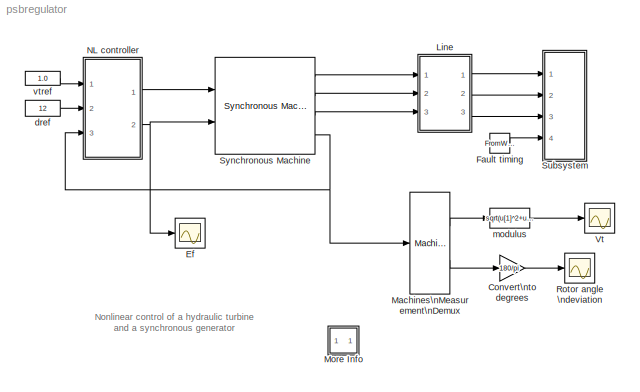
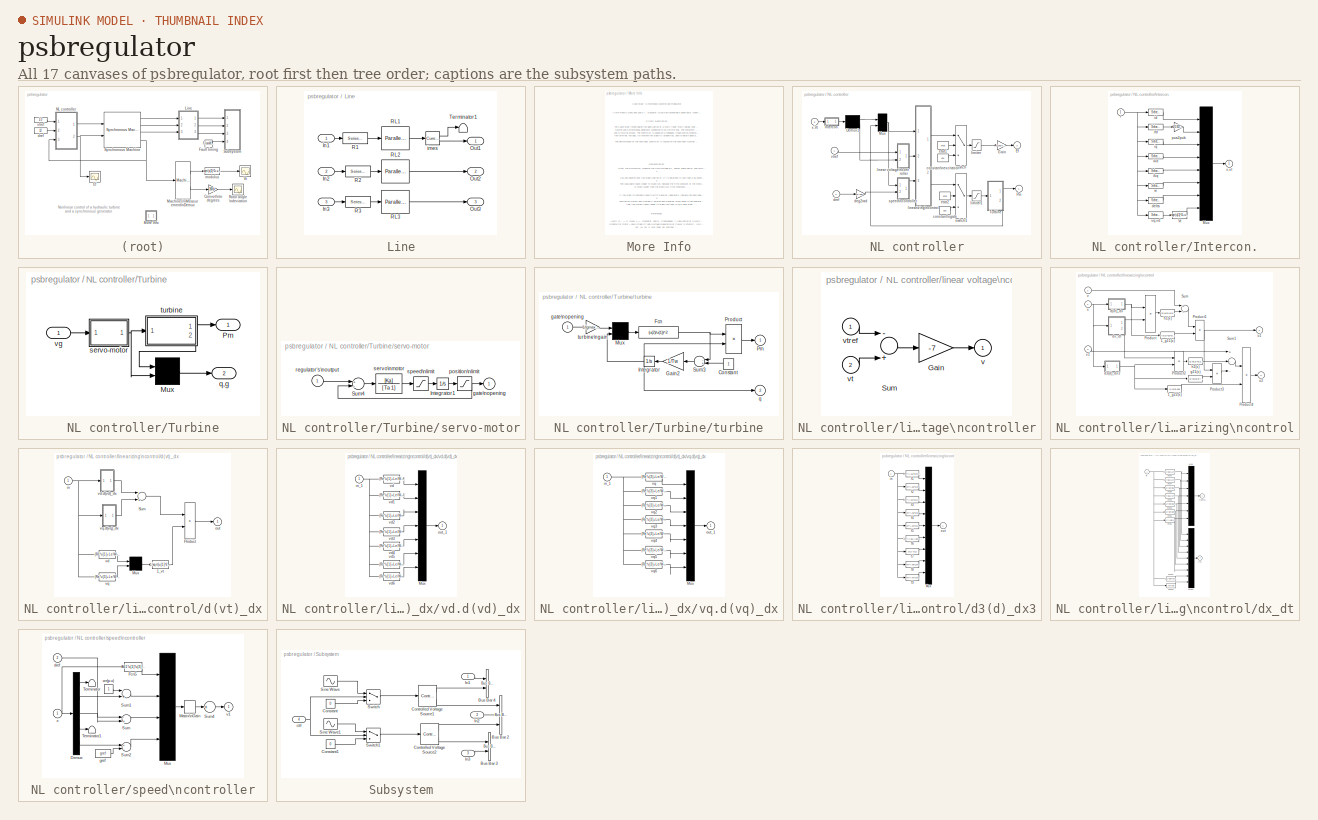
[diagram: thumbnail index - all 17 canvases of the model, root first then tree order]
MODEL psbregulator
KIND model
CONFIG InitFcn = powericon('psbinitsys',bdroot);
CONFIG StopFcn = set_param(gcs,'Dirty','off')
BLOCK [Gain] Convert\nto degrees
  Gain = 180/pi
BLOCK [Scope] Ef
  DataFormat = Array
  LimitDataPoints = off
  NumInputPorts = 1
  Ports = [1]
  TickLabels = on
  YMax = 12.5
  YMin = -12.5
BLOCK [FromWorkspace] Fault  timing
  MaskCallbackString = |
  MaskDescription = steps
  MaskDisplay = plot(te(:,1),te(:,2))
  MaskEnableString = on,on
  MaskIconFrame = on
  MaskIconOpaque = on
  MaskIconRotate = none
  MaskIconUnits = autoscale
  MaskInitialization = te=[t,t(2:length(t))-1e-8,t(length(t))+1e-8;e,e]';[y,i]=sort(te(:,1));te=[te(i,1),te(i,2)];\n\n
  MaskPromptString = transition steps:| states (0/1):
  MaskStyleString = edit,edit
  MaskTabNameString = ,
  MaskToolTipString = on,on
  MaskTunableValueString = on,on
  MaskType = Fault timing
  MaskValueString = [0,0.1,0.2,0.4]|[1,0,1,1]
  MaskVarAliasString = ,
  MaskVariables = t=@1;e=@2;
  MaskVisibilityString = on,on
  SampleTime = 0
  VariableName = te
BLOCK [SubSystem] Line
  MinAlgLoopOccurrences = off
  Ports = [3, 3]
  RTWSystemCode = Auto
  TreatAsAtomicUnit = off
BLOCK [Inport] Line/In1
  IconDisplay = Port number
  LatchInput = off
  Port = 1
BLOCK [Inport] Line/In2
  IconDisplay = Port number
  LatchInput = off
  Port = 2
BLOCK [Inport] Line/In3
  IconDisplay = Port number
  LatchInput = off
  Port = 3
BLOCK [Outport] Line/Out1
  BusOutputAsStruct = off
  IconDisplay = Port number
  InitialOutput = 0
BLOCK [Outport] Line/Out2
  BusOutputAsStruct = off
  IconDisplay = Port number
  InitialOutput = 0
  Port = 2
BLOCK [Outport] Line/Out3
  BusOutputAsStruct = off
  IconDisplay = Port number
  InitialOutput = 0
  Port = 3
BLOCK [Reference] Line/R1  REF=powerlib2/Elements/Series RLC Branch
  PSBOutputType = 1
  Ports = [1, 1]
  SourceBlock = powerlib2/Elements/Series RLC Branch
  SourceType = Series RLC Branch
  Tag = PoWeRsYsTeMbLoCk
  a = 5.6566e-2
  b = 0
  c = inf
  mesure = None
BLOCK [Reference] Line/R2  REF=powerlib2/Elements/Series RLC Branch
  PSBOutputType = 1
  Ports = [1, 1]
  SourceBlock = powerlib2/Elements/Series RLC Branch
  SourceType = Series RLC Branch
  Tag = PoWeRsYsTeMbLoCk
  a = 5.6566e-2
  b = 0
  c = inf
  mesure = None
BLOCK [Reference] Line/R3  REF=powerlib2/Elements/Series RLC Branch
  PSBOutputType = 1
  Ports = [1, 1]
  SourceBlock = powerlib2/Elements/Series RLC Branch
  SourceType = Series RLC Branch
  Tag = PoWeRsYsTeMbLoCk
  a = 5.6566e-2
  b = 0
  c = inf
  mesure = None
BLOCK [Reference] Line/RL1  REF=powerlib2/Elements/Parallel RLC Branch
  PSBOutputType = 1
  Ports = [1, 1]
  SourceBlock = powerlib2/Elements/Parallel RLC Branch
  SourceType = Parallel RLC Branch
  Tag = PoWeRsYsTeMbLoCk
  a = 25
  b = 6.5668e-4
  c = 0
  mesure = None
BLOCK [Reference] Line/RL2  REF=powerlib2/Elements/Parallel RLC Branch
  PSBOutputType = 1
  Ports = [1, 1]
  SourceBlock = powerlib2/Elements/Parallel RLC Branch
  SourceType = Parallel RLC Branch
  Tag = PoWeRsYsTeMbLoCk
  a = 25
  b = 6.5668e-4
  c = 0
  mesure = None
BLOCK [Reference] Line/RL3  REF=powerlib2/Elements/Parallel RLC Branch
  PSBOutputType = 1
  Ports = [1, 1]
  SourceBlock = powerlib2/Elements/Parallel RLC Branch
  SourceType = Parallel RLC Branch
  Tag = PoWeRsYsTeMbLoCk
  a = 25
  b = 6.5668e-4
  c = 0
  mesure = None
BLOCK [Terminator] Line/Terminator1
BLOCK [Reference] Line/imes  REF=powerlib2/Measurements/Current Measurement
  OutputType = Magnitude
  PSBOutputType = 01
  PSBequivalent = 1
  PhasorSimulation = off
  Ports = [1, 2]
  SourceBlock = powerlib2/Measurements/Current Measurement
  SourceType = Current Measurement
  Tag = PoWeRsYsTeMmEaSuReMeNt
BLOCK [Reference] Machines\nMeasurement\nDemux  REF=powerlib2/Machines/Machines\nMeasurement\nDemux
  Ports = [1, 2]
  SourceBlock = powerlib2/Machines/Machines\nMeasurement\nDemux
  SourceType = Machine measurements
  asm1 = on
  asm10 = on
  asm11 = on
  asm2 = on
  asm3 = on
  asm4 = on
  asm5 = on
  asm6 = on
  asm7 = on
  asm8 = on
  asm9 = on
  lastType = 1
  machType = Synchronous
  pmsm1 = on
  pmsm2 = on
  pmsm3 = on
  pmsm4 = on
  pmsm5 = on
  pmsm6 = on
  sm1 = off
  sm10 = off
  sm11 = off
  sm115 = off
  sm12 = off
  sm13 = off
  sm14 = off
  sm2 = off
  sm3 = off
  sm4 = off
  sm5 = off
  sm6 = on
  sm7 = on
  sm8 = off
  sm9 = off
  ssm1 = on
  ssm2 = on
  ssm3 = on
  ssm4 = on
  ssm5 = on
  ssm6 = on
BLOCK [SubSystem] More Info
  MaskDisplay = disp('?')
  MaskIconFrame = on
  MaskIconOpaque = on
  MaskIconRotate = none
  MaskIconUnits = autoscale
  MinAlgLoopOccurrences = off
  Ports = []
  RTWSystemCode = Auto
  TreatAsAtomicUnit = off
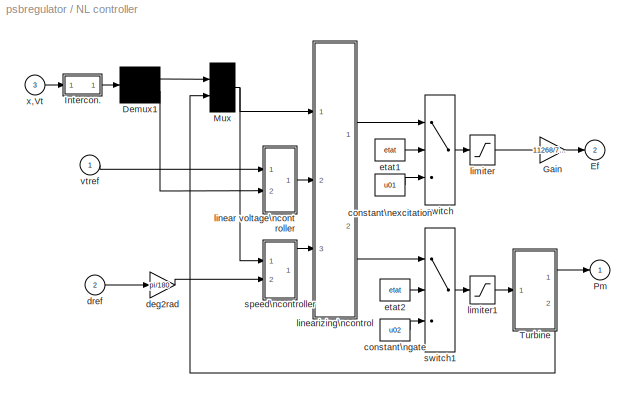
BLOCK [SubSystem] NL controller
  MaskCallbackString = ||||||
  MaskEnableString = on,on,on,on,on,on,on
  MaskIconFrame = on
  MaskIconOpaque = on
  MaskIconRotate = none
  MaskIconUnits = autoscale
  MaskInitialization = a=pi/2;[A11,A12,A13,A14,A15,A16,A21,A22,A23,A24,A25,A26,A31,A32,A33,A34,A35,A36,A41,A42,A43,A44,A45,A46,A51,A52,A53,A54,A55,A56,A61,A62,A63,A64,A65,A66,A67,A81,A82,A92,g1,g2,g4,g9,u01,u02,Re,Le,Wr,gref,po]=psbregulset(K,mac,delta);Ka=sm(1);Ta=sm(2);gmin=gate(1);gmax=gate(2);vgmin=gate(3);vgmax=gate(4);go=po*(gmax-gmin);\n\n
  MaskPromptString = Bus voltage (p.u.):|Controller state (0=off,1=on):|Associated machine name:|Desired load angle (deg):|Servo-motor [ Ka()  Ta(sec) ]:|Gate opening limits [ gmin,gmax(pu)    vgmin,vgmax(pu/s) ]:|Water time constant Tw(sec):
  MaskStyleString = edit,edit,edit,edit,edit,edit,edit
  MaskTabNameString = ,,,,,,
  MaskToolTipString = on,on,on,on,on,on,on
  MaskTunableValueString = on,on,on,on,on,on,on
  MaskType = Non-linear speed and excitation controller
  MaskValueString = 1|1|psbregulator/Synchronous Machine|12|[ 10/3  0.07 ]|[  0.01  0.97518  -0.1  0.1 ]|2.67
  MaskVarAliasString = ,,,,,,
  MaskVariables = K=@1;etat=@2;mac=&3;delta=@4;sm=@5;gate=@6;Tw=@7;
  MaskVisibilityString = on,on,on,on,on,on,on
  MinAlgLoopOccurrences = off
  Ports = [3, 2]
  RTWSystemCode = Auto
  TreatAsAtomicUnit = off
BLOCK [Demux] NL controller/Demux1
  Outputs = [7,1]
  Ports = [1, 2]
BLOCK [Outport] NL controller/Ef
  BusOutputAsStruct = off
  IconDisplay = Port number
  InitialOutput = 0
  Port = 2
BLOCK [Gain] NL controller/Gain
  Gain = 11268/7.8041
BLOCK [SubSystem] NL controller/Intercon.
  MinAlgLoopOccurrences = off
  Ports = [1, 1]
  RTWSystemCode = Auto
  TreatAsAtomicUnit = off
BLOCK [Outport] NL controller/Intercon./ x,vt 
  BusOutputAsStruct = off
  IconDisplay = Port number
  InitialOutput = 0
BLOCK [Inport] NL controller/Intercon./*
  IconDisplay = Port number
  LatchInput = off
  Port = 1
BLOCK [Mux] NL controller/Intercon./Mux
  Inputs = 8
  Ports = [8, 1]
BLOCK [Fcn] NL controller/Intercon./Vt
  Expr = sqrt(u[1]^2+u[2]^2)
BLOCK [Selector] NL controller/Intercon./delta
  Elements = 14
  InputPortWidth = 22
  Ports = [1, 1]
BLOCK [Selector] NL controller/Intercon./id
  Elements = 5
  InputPortWidth = 22
  Ports = [1, 1]
BLOCK [Selector] NL controller/Intercon./ifd
  Elements = 6
  InputPortWidth = 22
  Ports = [1, 1]
BLOCK [Selector] NL controller/Intercon./ikd
  Elements = 9
  InputPortWidth = 22
  Ports = [1, 1]
BLOCK [Selector] NL controller/Intercon./ikq
  Elements = 7
  InputPortWidth = 22
  Ports = [1, 1]
BLOCK [Selector] NL controller/Intercon./iq
  Elements = 4
  InputPortWidth = 22
  Ports = [1, 1]
BLOCK [Gain] NL controller/Intercon./pua2pub
  Gain = 1/0.91763
BLOCK [Selector] NL controller/Intercon./vq,vd
  Elements = [ 12:13 ]
  InputPortWidth = 22
  Ports = [1, 1]
BLOCK [Selector] NL controller/Intercon./w
  Elements = 15
  InputPortWidth = 22
  Ports = [1, 1]
BLOCK [Mux] NL controller/Mux
  Inputs = [7,2]
  Ports = [2, 1]
BLOCK [Outport] NL controller/Pm
  BusOutputAsStruct = off
  IconDisplay = Port number
  InitialOutput = 0
BLOCK [SubSystem] NL controller/Turbine
  MinAlgLoopOccurrences = off
  Ports = [1, 2]
  RTWSystemCode = Auto
  TreatAsAtomicUnit = off
BLOCK [Mux] NL controller/Turbine/Mux
  Inputs = 2
  Ports = [2, 1]
BLOCK [Outport] NL controller/Turbine/Pm
  BusOutputAsStruct = off
  IconDisplay = Port number
  InitialOutput = 0
BLOCK [Outport] NL controller/Turbine/q,g
  BusOutputAsStruct = off
  IconDisplay = Port number
  InitialOutput = 0
  Port = 2
BLOCK [SubSystem] NL controller/Turbine/servo-motor
  MaskDisplay = disp('servo-\\nmotor')
  MaskIconFrame = on
  MaskIconOpaque = on
  MaskIconRotate = none
  MaskIconUnits = autoscale
  MinAlgLoopOccurrences = off
  Ports = [1, 1]
  RTWSystemCode = Auto
  ShowPortLabels = off
  TreatAsAtomicUnit = off
BLOCK [Integrator] NL controller/Turbine/servo-motor/Integrator1
  InitialCondition = go
  Ports = [1, 1]
  ZeroCross = off
BLOCK [Sum] NL controller/Turbine/servo-motor/Sum4
  Inputs = +-
  Ports = [2, 1]
BLOCK [Outport] NL controller/Turbine/servo-motor/gate\nopening
  BusOutputAsStruct = off
  IconDisplay = Port number
  InitialOutput = 0
BLOCK [Saturate] NL controller/Turbine/servo-motor/position\nlimit
  LowerLimit = gmin
  UpperLimit = gmax
  ZeroCross = off
BLOCK [Inport] NL controller/Turbine/servo-motor/regulator's\noutput
  IconDisplay = Port number
  LatchInput = off
  Port = 1
BLOCK [TransferFcn] NL controller/Turbine/servo-motor/servo\nmotor
  Denominator = [ Ta  1]
  Numerator = [Ka]
BLOCK [Saturate] NL controller/Turbine/servo-motor/speed\nlimit
  LowerLimit = vgmin
  UpperLimit = vgmax
  ZeroCross = off
BLOCK [SubSystem] NL controller/Turbine/turbine
  MaskDisplay = disp('hydraulic\\nturbine')
  MaskIconFrame = on
  MaskIconOpaque = on
  MaskIconRotate = none
  MaskIconUnits = autoscale
  MinAlgLoopOccurrences = off
  Ports = [1, 2]
  RTWSystemCode = Auto
  ShowPortLabels = off
  TreatAsAtomicUnit = off
BLOCK [Constant] NL controller/Turbine/turbine/Constant
BLOCK [Fcn] NL controller/Turbine/turbine/Fcn
  Expr = (u(2)/u(1))^2
BLOCK [Gain] NL controller/Turbine/turbine/Gain2
  Gain = 1/Tw
BLOCK [Integrator] NL controller/Turbine/turbine/Integrator
  InitialCondition = po
  Ports = [1, 1]
  ZeroCross = off
BLOCK [Mux] NL controller/Turbine/turbine/Mux
  Inputs = 2
  Ports = [2, 1]
BLOCK [Outport] NL controller/Turbine/turbine/Pm
  BusOutputAsStruct = off
  IconDisplay = Port number
  InitialOutput = 0
BLOCK [Product] NL controller/Turbine/turbine/Product
  Ports = [2, 1]
  RndMeth = Floor
BLOCK [Sum] NL controller/Turbine/turbine/Sum3
  Inputs = -+
  Ports = [2, 1]
BLOCK [Inport] NL controller/Turbine/turbine/gate\nopening
  IconDisplay = Port number
  LatchInput = off
  Port = 1
BLOCK [Outport] NL controller/Turbine/turbine/q
  BusOutputAsStruct = off
  IconDisplay = Port number
  InitialOutput = 0
  Port = 2
BLOCK [Gain] NL controller/Turbine/turbine/turbine\ngain
  Gain = 1/(gmax-gmin)
BLOCK [Inport] NL controller/Turbine/vg
  IconDisplay = Port number
  LatchInput = off
  Port = 1
BLOCK [Constant] NL controller/constant\nexcitation
  Value = u01
BLOCK [Constant] NL controller/constant\ngate
  Value = u02
BLOCK [Gain] NL controller/deg2rad
  Gain = pi/180
BLOCK [Inport] NL controller/dref
  IconDisplay = Port number
  LatchInput = off
  Port = 2
BLOCK [Constant] NL controller/etat1
  Value = etat
BLOCK [Constant] NL controller/etat2
  Value = etat
BLOCK [Saturate] NL controller/limiter
  LowerLimit = -11.5*7.804/11268
  UpperLimit = 11.5*7.804/11268
  ZeroCross = off
BLOCK [Saturate] NL controller/limiter1
  LowerLimit = -1
  UpperLimit = 1
  ZeroCross = off
BLOCK [SubSystem] NL controller/linear voltage\ncontroller
  MinAlgLoopOccurrences = off
  Ports = [2, 1]
  RTWSystemCode = Auto
  TreatAsAtomicUnit = off
BLOCK [Gain] NL controller/linear voltage\ncontroller/Gain
  Gain = -7
BLOCK [Sum] NL controller/linear voltage\ncontroller/Sum
  Inputs = -+
  Ports = [2, 1]
BLOCK [Outport] NL controller/linear voltage\ncontroller/v
  BusOutputAsStruct = off
  IconDisplay = Port number
  InitialOutput = 0
BLOCK [Inport] NL controller/linear voltage\ncontroller/vt
  IconDisplay = Port number
  LatchInput = off
  Port = 2
BLOCK [Inport] NL controller/linear voltage\ncontroller/vtref
  IconDisplay = Port number
  LatchInput = off
  Port = 1
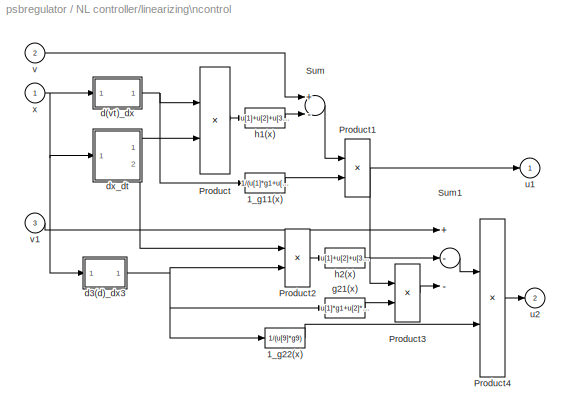
BLOCK [SubSystem] NL controller/linearizing\ncontrol
  MinAlgLoopOccurrences = off
  Ports = [3, 2]
  RTWSystemCode = Auto
  TreatAsAtomicUnit = off
BLOCK [Fcn] NL controller/linearizing\ncontrol/1_g11(x)
  Expr = 1/(u[1]*g1+u[2]*g2+u[4]*g4)
BLOCK [Fcn] NL controller/linearizing\ncontrol/1_g22(x)
  Expr = 1/(u[9]*g9)
BLOCK [Product] NL controller/linearizing\ncontrol/Product
  Ports = [2, 1]
  RndMeth = Floor
BLOCK [Product] NL controller/linearizing\ncontrol/Product1
  Ports = [2, 1]
  RndMeth = Floor
BLOCK [Product] NL controller/linearizing\ncontrol/Product2
  Ports = [2, 1]
  RndMeth = Floor
BLOCK [Product] NL controller/linearizing\ncontrol/Product3
  Ports = [2, 1]
  RndMeth = Floor
BLOCK [Product] NL controller/linearizing\ncontrol/Product4
  Ports = [2, 1]
  RndMeth = Floor
BLOCK [Sum] NL controller/linearizing\ncontrol/Sum
  Inputs = +-
  Ports = [2, 1]
BLOCK [Sum] NL controller/linearizing\ncontrol/Sum1
  Inputs = +--
  Ports = [3, 1]
BLOCK [SubSystem] NL controller/linearizing\ncontrol/d(vt)_dx
  MinAlgLoopOccurrences = off
  Ports = [1, 1]
  RTWSystemCode = Auto
  TreatAsAtomicUnit = off
BLOCK [Fcn] NL controller/linearizing\ncontrol/d(vt)_dx/1_vt
  Expr = 1/sqrt(u[1]^2+u[2]^2)
BLOCK [Mux] NL controller/linearizing\ncontrol/d(vt)_dx/Mux
  Inputs = 2
  Ports = [2, 1]
BLOCK [Product] NL controller/linearizing\ncontrol/d(vt)_dx/Product
  Ports = [2, 1]
  RndMeth = Floor
BLOCK [Sum] NL controller/linearizing\ncontrol/d(vt)_dx/Sum
  Ports = [2, 1]
BLOCK [Inport] NL controller/linearizing\ncontrol/d(vt)_dx/in
  IconDisplay = Port number
  LatchInput = off
  Port = 1
BLOCK [Outport] NL controller/linearizing\ncontrol/d(vt)_dx/out
  BusOutputAsStruct = off
  IconDisplay = Port number
  InitialOutput = 0
BLOCK [Fcn] NL controller/linearizing\ncontrol/d(vt)_dx/vd
  Expr = (Re*u[1]+Le/Wr*(A11*u[1]+A12*u[2]+A13*u[3]*u[6]+A14*u[4]+A15*u[5]*u[6]+A16*cos(-u[7]+a))-Le*u[3]*u[6]+K*cos(-u[7]+a))
BLOCK [SubSystem] NL controller/linearizing\ncontrol/d(vt)_dx/vd.d(vd)_dx
  MinAlgLoopOccurrences = off
  Ports = [1, 1]
  RTWSystemCode = Auto
  TreatAsAtomicUnit = off
BLOCK [Mux] NL controller/linearizing\ncontrol/d(vt)_dx/vd.d(vd)_dx/Mux
  Inputs = 7
  Ports = [7, 1]
BLOCK [Inport] NL controller/linearizing\ncontrol/d(vt)_dx/vd.d(vd)_dx/in_1
  IconDisplay = Port number
  LatchInput = off
  Port = 1
BLOCK [Outport] NL controller/linearizing\ncontrol/d(vt)_dx/vd.d(vd)_dx/out_1
  BusOutputAsStruct = off
  IconDisplay = Port number
  InitialOutput = 0
BLOCK [Fcn] NL controller/linearizing\ncontrol/d(vt)_dx/vd.d(vd)_dx/vd
  Expr = (Re*u[1]+Le/Wr*(A11*u[1]+A12*u[2]+A13*u[3]*u[6]+A14*u[4]+A15*u[5]*u[6]+A16*cos(-u[7]+a))-Le*u[3]*u[6]+K*cos(-u[7]+a))*(Re+Le*A11/Wr)
BLOCK [Fcn] NL controller/linearizing\ncontrol/d(vt)_dx/vd.d(vd)_dx/vd1
  Expr = (Re*u[1]+Le/Wr*(A11*u[1]+A12*u[2]+A13*u[3]*u[6]+A14*u[4]+A15*u[5]*u[6]+A16*cos(-u[7]+a))-Le*u[3]*u[6]+K*cos(-u[7]+a))*(Le*A12/Wr)
BLOCK [Fcn] NL controller/linearizing\ncontrol/d(vt)_dx/vd.d(vd)_dx/vd2
  Expr = (Re*u[1]+Le/Wr*(A11*u[1]+A12*u[2]+A13*u[3]*u[6]+A14*u[4]+A15*u[5]*u[6]+A16*cos(-u[7]+a))-Le*u[3]*u[6]+K*cos(-u[7]+a))*(Le*A13/Wr-Le)*u[6]
BLOCK [Fcn] NL controller/linearizing\ncontrol/d(vt)_dx/vd.d(vd)_dx/vd3
  Expr = (Re*u[1]+Le/Wr*(A11*u[1]+A12*u[2]+A13*u[3]*u[6]+A14*u[4]+A15*u[5]*u[6]+A16*cos(-u[7]+a))-Le*u[3]*u[6]+K*cos(-u[7]+a))*(Le*A14/Wr)
BLOCK [Fcn] NL controller/linearizing\ncontrol/d(vt)_dx/vd.d(vd)_dx/vd4
  Expr = (Re*u[1]+Le/Wr*(A11*u[1]+A12*u[2]+A13*u[3]*u[6]+A14*u[4]+A15*u[5]*u[6]+A16*cos(-u[7]+a))-Le*u[3]*u[6]+K*cos(-u[7]+a))*(Le*A15/Wr)*u[6]
BLOCK [Fcn] NL controller/linearizing\ncontrol/d(vt)_dx/vd.d(vd)_dx/vd5
  Expr = (Re*u[1]+Le/Wr*(A11*u[1]+A12*u[2]+A13*u[3]*u[6]+A14*u[4]+A15*u[5]*u[6]+A16*cos(-u[7]+a))-Le*u[3]*u[6]+K*cos(-u[7]+a))*((Le*A13/Wr-Le)*u[3]+Le*A15/Wr*u[5])
BLOCK [Fcn] NL controller/linearizing\ncontrol/d(vt)_dx/vd.d(vd)_dx/vd6
  Expr = (Re*u[1]+Le/Wr*(A11*u[1]+A12*u[2]+A13*u[3]*u[6]+A14*u[4]+A15*u[5]*u[6]+A16*cos(-u[7]+a))-Le*u[3]*u[6]+K*cos(-u[7]+a))*(K+Le*A16/Wr)*sin(-u[7]+a)
BLOCK [Fcn] NL controller/linearizing\ncontrol/d(vt)_dx/vq
  Expr = (Re*u[3]+Le/Wr*(A31*u[1]*u[6]+A32*u[2]*u[6]+A33*u[3]+A34*u[4]*u[6]+A35*u[5]+A36*sin(-u[7]+a))+Le*u[1]*u[6]+K*sin(-u[7]+a))
BLOCK [SubSystem] NL controller/linearizing\ncontrol/d(vt)_dx/vq.d(vq)_dx
  MinAlgLoopOccurrences = off
  Ports = [1, 1]
  RTWSystemCode = Auto
  TreatAsAtomicUnit = off
BLOCK [Mux] NL controller/linearizing\ncontrol/d(vt)_dx/vq.d(vq)_dx/Mux
  Inputs = 7
  Ports = [7, 1]
BLOCK [Inport] NL controller/linearizing\ncontrol/d(vt)_dx/vq.d(vq)_dx/in_1
  IconDisplay = Port number
  LatchInput = off
  Port = 1
BLOCK [Outport] NL controller/linearizing\ncontrol/d(vt)_dx/vq.d(vq)_dx/out_1
  BusOutputAsStruct = off
  IconDisplay = Port number
  InitialOutput = 0
BLOCK [Fcn] NL controller/linearizing\ncontrol/d(vt)_dx/vq.d(vq)_dx/vq
  Expr = (Re*u[3]+Le/Wr*(A31*u[1]*u[6]+A32*u[2]*u[6]+A33*u[3]+A34*u[4]*u[6]+A35*u[5]+A36*sin(-u[7]+a))+Le*u[1]*u[6]+K*sin(-u[7]+a))*(Le*A31/Wr+Le)*u[6]
BLOCK [Fcn] NL controller/linearizing\ncontrol/d(vt)_dx/vq.d(vq)_dx/vq1
  Expr = (Re*u[3]+Le/Wr*(A31*u[1]*u[6]+A32*u[2]*u[6]+A33*u[3]+A34*u[4]*u[6]+A35*u[5]+A36*sin(-u[7]+a))+Le*u[1]*u[6]+K*sin(-u[7]+a))*Le*A32/Wr*u[6]
BLOCK [Fcn] NL controller/linearizing\ncontrol/d(vt)_dx/vq.d(vq)_dx/vq2
  Expr = (Re*u[3]+Le/Wr*(A31*u[1]*u[6]+A32*u[2]*u[6]+A33*u[3]+A34*u[4]*u[6]+A35*u[5]+A36*sin(-u[7]+a))+Le*u[1]*u[6]+K*sin(-u[7]+a))*(Re+Le*A33/Wr)
BLOCK [Fcn] NL controller/linearizing\ncontrol/d(vt)_dx/vq.d(vq)_dx/vq3
  Expr = (Re*u[3]+Le/Wr*(A31*u[1]*u[6]+A32*u[2]*u[6]+A33*u[3]+A34*u[4]*u[6]+A35*u[5]+A16*sin(-u[7]+a))+Le*u[1]*u[6]+K*sin(-u[7]+a))*(Le*A34/Wr)*u[6]
BLOCK [Fcn] NL controller/linearizing\ncontrol/d(vt)_dx/vq.d(vq)_dx/vq4
  Expr = (Re*u[3]+Le/Wr*(A31*u[1]*u[6]+A32*u[2]*u[6]+A33*u[3]+A34*u[4]*u[6]+A35*u[5]+A36*sin(-u[7]+a))+Le*u[1]*u[6]+K*sin(-u[7]+a))*(Le*A35/Wr)
BLOCK [Fcn] NL controller/linearizing\ncontrol/d(vt)_dx/vq.d(vq)_dx/vq5
  Expr = (Re*u[3]+Le/Wr*(A31*u[1]*u[6]+A32*u[2]*u[6]+A33*u[3]+A34*u[4]*u[6]+A35*u[5]+A36*sin(-u[7]+a))+Le*u[1]*u[6]+K*sin(-u[7]+a))*((Le+Le*A31/Wr)*u[1]+Le*A32/Wr*u[2]+Le*A34/Wr*u[4])
BLOCK [Fcn] NL controller/linearizing\ncontrol/d(vt)_dx/vq.d(vq)_dx/vq6
  Expr = (Re*u[3]+Le/Wr*(A31*u[1]*u[6]+A32*u[2]*u[6]+A33*u[3]+A34*u[4]*u[6]+A35*u[5]+A36*sin(-u[7]+a))+Le*u[1]*u[6]+K*sin(-u[7]+a))*(-cos(-u[7]+a)*(Le*A36/Wr+K))
BLOCK [SubSystem] NL controller/linearizing\ncontrol/d3(d)_dx3
  MinAlgLoopOccurrences = off
  Ports = [1, 1]
  RTWSystemCode = Auto
  TreatAsAtomicUnit = off
BLOCK [Mux] NL controller/linearizing\ncontrol/d3(d)_dx3/Mux
  Inputs = 9
  Ports = [9, 1]
BLOCK [Fcn] NL controller/linearizing\ncontrol/d3(d)_dx3/f1
  Expr = Wr*(A61*u[3]+A64*u[5])
BLOCK [Fcn] NL controller/linearizing\ncontrol/d3(d)_dx3/f2
  Expr = Wr*A62*u[3]
BLOCK [Fcn] NL controller/linearizing\ncontrol/d3(d)_dx3/f3
  Expr = Wr*(A61*u[1]+A62*u[2]+A63*u[4])
BLOCK [Fcn] NL controller/linearizing\ncontrol/d3(d)_dx3/f4
  Expr = Wr*A63*u[3]
BLOCK [Fcn] NL controller/linearizing\ncontrol/d3(d)_dx3/f5
  Expr = Wr*A64*u[1]
BLOCK [Fcn] NL controller/linearizing\ncontrol/d3(d)_dx3/f6
  Expr = Wr*(A65-A66*u[8]/u[6]^2-A67*u[9]/u[6]^2)
BLOCK [Fcn] NL controller/linearizing\ncontrol/d3(d)_dx3/f7
  Expr = u[1]-u[1]
BLOCK [Fcn] NL controller/linearizing\ncontrol/d3(d)_dx3/f8
  Expr = Wr*A66/u[6]
BLOCK [Fcn] NL controller/linearizing\ncontrol/d3(d)_dx3/f9
  Expr = Wr*A67/u[6]
BLOCK [Inport] NL controller/linearizing\ncontrol/d3(d)_dx3/in
  IconDisplay = Port number
  LatchInput = off
  Port = 1
BLOCK [Outport] NL controller/linearizing\ncontrol/d3(d)_dx3/out
  BusOutputAsStruct = off
  IconDisplay = Port number
  InitialOutput = 0
BLOCK [SubSystem] NL controller/linearizing\ncontrol/dx_dt
  MinAlgLoopOccurrences = off
  Ports = [1, 2]
  RTWSystemCode = Auto
  TreatAsAtomicUnit = off
BLOCK [Fcn] NL controller/linearizing\ncontrol/dx_dt/Fcn10
  Expr = A51*u[1]*u[6]+A52*u[2]*u[6]+A53*u[3]+A54*u[4]*u[6]+A55*u[5]+A56*sin(-u[7]+a)
BLOCK [Fcn] NL controller/linearizing\ncontrol/dx_dt/Fcn11
  Expr = A81*u[8]+A82*u[9]
BLOCK [Fcn] NL controller/linearizing\ncontrol/dx_dt/Fcn12
  Expr = A92*u[9]
BLOCK [Fcn] NL controller/linearizing\ncontrol/dx_dt/Fcn4
  Expr = A11*u[1]+A12*u[2]+A13*u[3]*u[6]+A14*u[4]+A15*u[5]*u[6]+A16*cos(-u[7]+a)
BLOCK [Fcn] NL controller/linearizing\ncontrol/dx_dt/Fcn5
  Expr = A61*u[1]*u[3]+A62*u[2]*u[3]+A63*u[3]*u[4]+A64*u[1]*u[5]+A65*u[6]+A66*u[8]/u[6]+A67*u[9]/u[6]
BLOCK [Fcn] NL controller/linearizing\ncontrol/dx_dt/Fcn6
  Expr = Wr*(u[6]-1)
BLOCK [Fcn] NL controller/linearizing\ncontrol/dx_dt/Fcn7
  Expr = A21*u[1]+A22*u[2]+A23*u[3]*u[6]+A24*u[4]+A25*u[5]*u[6]+A26*cos(-u[7]+a)
BLOCK [Fcn] NL controller/linearizing\ncontrol/dx_dt/Fcn8
  Expr = A31*u[1]*u[6]+A32*u[2]*u[6]+A33*u[3]+A34*u[4]*u[6]+A35*u[5]+A36*sin(-u[7]+a)
BLOCK [Fcn] NL controller/linearizing\ncontrol/dx_dt/Fcn9
  Expr = A41*u[1]+A42*u[2]+A43*u[3]*u[6]+A44*u[4]+A45*u[5]*u[6]+A46*cos(-u[7]+a)
BLOCK [Mux] NL controller/linearizing\ncontrol/dx_dt/Mux
  Inputs = 7
  Ports = [7, 1]
BLOCK [Mux] NL controller/linearizing\ncontrol/dx_dt/Mux1
  Inputs = 9
  Ports = [9, 1]
BLOCK [Outport] NL controller/linearizing\ncontrol/dx_dt/f(x)
  BusOutputAsStruct = off
  IconDisplay = Port number
  InitialOutput = 0
  Port = 2
BLOCK [Outport] NL controller/linearizing\ncontrol/dx_dt/f(xms)
  BusOutputAsStruct = off
  IconDisplay = Port number
  InitialOutput = 0
BLOCK [Inport] NL controller/linearizing\ncontrol/dx_dt/in
  IconDisplay = Port number
  LatchInput = off
  Port = 1
BLOCK [Fcn] NL controller/linearizing\ncontrol/g21(x)
  Expr = u[1]*g1+u[2]*g2+u[4]*g4
BLOCK [Fcn] NL controller/linearizing\ncontrol/h1(x)
  Expr = u[1]+u[2]+u[3]+u[4]+u[5]+u[6]+u[7]
BLOCK [Fcn] NL controller/linearizing\ncontrol/h2(x)
  Expr = u[1]+u[2]+u[3]+u[4]+u[5]+u[6]+u[7]+u[8]+u[9]
BLOCK [Outport] NL controller/linearizing\ncontrol/u1
  BusOutputAsStruct = off
  IconDisplay = Port number
  InitialOutput = 0
BLOCK [Outport] NL controller/linearizing\ncontrol/u2
  BusOutputAsStruct = off
  IconDisplay = Port number
  InitialOutput = 0
  Port = 2
BLOCK [Inport] NL controller/linearizing\ncontrol/v
  IconDisplay = Port number
  LatchInput = off
  Port = 2
BLOCK [Inport] NL controller/linearizing\ncontrol/v1
  IconDisplay = Port number
  LatchInput = off
  Port = 3
BLOCK [Inport] NL controller/linearizing\ncontrol/x
  IconDisplay = Port number
  LatchInput = off
  Port = 1
BLOCK [SubSystem] NL controller/speed\ncontroller
  MinAlgLoopOccurrences = off
  Ports = [2, 1]
  RTWSystemCode = Auto
  TreatAsAtomicUnit = off
BLOCK [Demux] NL controller/speed\ncontroller/Demux
  Outputs = [ 5,1,1,1,1]
  Ports = [1, 5]
BLOCK [Fcn] NL controller/speed\ncontroller/Fcn5
  Expr = A61*u[1]*u[3]+A62*u[2]*u[3]+A63*u[3]*u[4]+A64*u[1]*u[5]+A65*u[6]+A66*u[8]/u[6]+A67*u[9]/u[6]
BLOCK [StateSpace] NL controller/speed\ncontroller/Matrix\nGain
  A = []
  B = []
  C = []
  D = K
  MaskDescription = Matrix Gain.
  MaskDisplay = disp('K')
  MaskEnableString = on
  MaskHelp = Multiplies input vector by entered matrix to produce output vector (y=Au).
  MaskIconFrame = on
  MaskIconOpaque = on
  MaskIconRotate = none
  MaskIconUnits = autoscale
  MaskInitialization = K=@1;
  MaskPromptString = Gain matrix:
  MaskStyleString = edit
  MaskToolTipString = on
  MaskTunableValueString = on
  MaskType = Matrix Gain
  MaskValueString = [ -Wr*11.00, -Wr*46.6345, -36.6345, 553.6311*80 ]
  MaskVisibilityString = on
BLOCK [Mux] NL controller/speed\ncontroller/Mux
  Ports = [4, 1]
BLOCK [Sum] NL controller/speed\ncontroller/Sum
  Inputs = -+
  Ports = [2, 1]
BLOCK [Sum] NL controller/speed\ncontroller/Sum1
  Inputs = -+
  Ports = [2, 1]
BLOCK [Sum] NL controller/speed\ncontroller/Sum2
  Inputs = +-
  Ports = [2, 1]
BLOCK [Sum] NL controller/speed\ncontroller/Sum4
  Inputs = +
  Ports = [1, 1]
BLOCK [Terminator] NL controller/speed\ncontroller/Terminator
BLOCK [Terminator] NL controller/speed\ncontroller/Terminator1
BLOCK [Inport] NL controller/speed\ncontroller/dref
  IconDisplay = Port number
  LatchInput = off
  Port = 2
BLOCK [Constant] NL controller/speed\ncontroller/gref
  Value = gref
BLOCK [Outport] NL controller/speed\ncontroller/v1
  BusOutputAsStruct = off
  IconDisplay = Port number
  InitialOutput = 0
BLOCK [Constant] NL controller/speed\ncontroller/wr(p.u)
BLOCK [Inport] NL controller/speed\ncontroller/x
  IconDisplay = Port number
  LatchInput = off
  Port = 1
BLOCK [Switch] NL controller/switch
  SaturateOnIntegerOverflow = off
  Threshold = 0.5
  ZeroCross = off
BLOCK [Switch] NL controller/switch1
  SaturateOnIntegerOverflow = off
  Threshold = 0.5
  ZeroCross = off
BLOCK [Inport] NL controller/vtref
  IconDisplay = Port number
  LatchInput = off
  Port = 1
BLOCK [Inport] NL controller/x,Vt
  IconDisplay = Port number
  LatchInput = off
  Port = 3
BLOCK [Scope] Rotor angle \ndeviation
  DataFormat = Array
  Decimation = 10
  LimitDataPoints = off
  NumInputPorts = 1
  Ports = [1]
  SaveName = ScopeData1
  TickLabels = on
  TimeRange = 2
  YMax = 13.5
  YMin = 10.5
BLOCK [SubSystem] Subsystem
  MinAlgLoopOccurrences = off
  Ports = [4]
  RTWSystemCode = Auto
  TreatAsAtomicUnit = off
BLOCK [Reference] Subsystem/Bus Bar 2  REF=powerlib2/Connectors/Bus Bar (vert)
  PSBOutputType = 11111111111111111111111111111111111111111111111111111111111111111111111111111111111111111
  Ports = [3]
  SourceBlock = powerlib2/Connectors/Bus Bar (vert)
  SourceType = Bus Bar
  entrees = 3
  sorties = 0
BLOCK [Reference] Subsystem/Bus Bar 3  REF=powerlib2/Connectors/Bus Bar (vert)
  PSBOutputType = 11111111111111111111111111111111111111111111111111111111111111111111111111111111111111111
  Ports = [2]
  SourceBlock = powerlib2/Connectors/Bus Bar (vert)
  SourceType = Bus Bar
  entrees = 2
  sorties = 0
BLOCK [Reference] Subsystem/Bus Bar 4  REF=powerlib2/Connectors/Bus Bar (vert)
  PSBOutputType = 11111111111111111111111111111111111111111111111111111111111111111111111111111111111111111
  Ports = [2]
  SourceBlock = powerlib2/Connectors/Bus Bar (vert)
  SourceType = Bus Bar
  entrees = 2
  sorties = 0
BLOCK [Constant] Subsystem/Constant
  Value = 0
BLOCK [Constant] Subsystem/Constant1
  Value = 0
BLOCK [Reference] Subsystem/Controlled Voltage Source1  REF=powerlib2/Electrical\nSources/Controlled Voltage Source
  PSBOutputType = 11
  Ports = [1, 2]
  SourceBlock = powerlib2/Electrical\nSources/Controlled Voltage Source
  SourceType = Controlled Voltage Source
  Tag = PoWeRsYsTeMbLoCk
  ifreq = 0
  initsrc = on
  iph = 0
  iv = 13800*sqrt(2)*sin(60*2*pi+120*pi/180)
  mesure = None
  srctyp = AC
BLOCK [Reference] Subsystem/Controlled Voltage Source2  REF=powerlib2/Electrical\nSources/Controlled Voltage Source
  PSBOutputType = 11
  Ports = [1, 2]
  SourceBlock = powerlib2/Electrical\nSources/Controlled Voltage Source
  SourceType = Controlled Voltage Source
  Tag = PoWeRsYsTeMbLoCk
  ifreq = 0
  initsrc = on
  iph = 0
  iv = 13800*sqrt(2)*sin(60*2*pi+0)
  mesure = None
  srctyp = AC
BLOCK [Inport] Subsystem/In1
  IconDisplay = Port number
  LatchInput = off
  Port = 1
BLOCK [Inport] Subsystem/In2
  IconDisplay = Port number
  LatchInput = off
  Port = 2
BLOCK [Inport] Subsystem/In3
  IconDisplay = Port number
  LatchInput = off
  Port = 3
BLOCK [Sin] Subsystem/Sine Wave
  Amplitude = 13800*sqrt(2)
  Frequency = 60*2*pi
  Phase = 120*pi/180
  Ports = [0, 1]
  SampleTime = 0
  SineType = Time based
BLOCK [Sin] Subsystem/Sine Wave1
  Amplitude = 13800*sqrt(2)
  Frequency = 60*2*pi
  Ports = [0, 1]
  SampleTime = 0
  SineType = Time based
BLOCK [Switch] Subsystem/Switch
  SaturateOnIntegerOverflow = off
  Threshold = 0.5
  ZeroCross = off
BLOCK [Switch] Subsystem/Switch1
  SaturateOnIntegerOverflow = off
  Threshold = 0.5
  ZeroCross = off
BLOCK [Inport] Subsystem/ctrl
  IconDisplay = Port number
  LatchInput = off
  Port = 4
BLOCK [Reference] Synchronous Machine  REF=powerlib2/Machines/Synchronous Machine\npu Fundamental
  LoadFlowParameters = [1,0,0,0,0]
  PSBOutputType = 1110
  Ports = [2, 4]
  SourceBlock = powerlib2/Machines/Synchronous Machine\npu Fundamental
  SourceType = Synchronous Machine
  Tag = PoWeRsYsTeMbLoCk
  iounits = 0
  rotorType = Salient-pole
  x1 = [ 202E6  13800   60 ]
  x2 = [ 0.003   0.19837   0.91763   0.21763 ]
  x3 = [ 6.3581E-04   0.16537 ]
  x4 = [ 4.6454E-03  3.9203E-02  6.8430E-03  1.4544E-02 ]
  x4b = []
  x5 = [ 3.195  0  32 ]
  x6 = [0 12 0.30512 0.30512 0.30512 105.77 -14.23 -134.23 0.970463]
  x7 = off
  x8 = [ ]
BLOCK [Scope] Vt
  DataFormat = Array
  LimitDataPoints = off
  NumInputPorts = 1
  Ports = [1]
  SaveName = ScopeData2
  TickLabels = on
  TimeRange = 2
  YMax = 1.6
  YMin = 5.55112e-017
BLOCK [Constant] dref
  Value = 12
BLOCK [Fcn] modulus
  Expr = sqrt(u[1]^2+u[2]^2)
BLOCK [Constant] vtref
  Value = 1.0
ANNOTATION (root): Nonlinear control of a hydraulic turbine\nand a synchronous generator
ANNOTATION More Info: 1
ANNOTATION More Info: 2
ANNOTATION More Info: 3
ANNOTATION More Info: Aime Francis Okou and Louis-A. Dessaint (Ecole de technologie superieure, Montreal)
ANNOTATION More Info: Akhrif O., A.F. Okou, L.A. Dessaint, and R. Champagne, \"Application of a Multivariable Feedback Linearization \nScheme for Rotor Angle Stability and Voltage Regulation of Power Systems\", IEEE Transactions on Power Systems,\nvol. 14, no. 2, May 1999, pp. 620-628.
ANNOTATION More Info: Case study: Synchronous Machine and Regulator
ANNOTATION More Info: Circuit Description
ANNOTATION More Info: Demonstration
ANNOTATION More Info: If you want to compare results with classical regulators, replace the nonlinear controller with the same\nexcitation system and Hydraulic Turbine and Governor block used in the psbturbine demo. You will notice \nthat the system takes longer to stabilize than in this case study.
ANNOTATION More Info: References
ANNOTATION More Info: Start the simulation. Observe the field voltage Ef, power angle delta, and terminal voltage Vt.
ANNOTATION More Info: This case study investigates the application of a multi-input multi-output nonlinear controller to a system consisting of a hydraulic \nturbine and a synchronous generator connected to an infinite bus. The complete system is modeled using SimPowerSystems\nand Simulink blocks. The controller is based on a feedback linearization scheme. Its main goal is to control the rotor angle as well as \nthe te...<+451ch>
ANNOTATION More Info: You can observe how the stabilization of Vt is obtained in less than 0.25 seconds with this controller. \nThe load angle takes longer to stabilize, because the time constant of the mechanical part of the system\nis much larger than the electrical time constants.
LINE Convert\nto degrees:1 -> Rotor angle \ndeviation:1
LINE Fault  timing:1 -> Subsystem:4
LINE Line/In1:1 -> Line/R1:1
LINE Line/In2:1 -> Line/R2:1
LINE Line/In3:1 -> Line/R3:1
LINE Line/R1:1 -> Line/RL1:1
LINE Line/R2:1 -> Line/RL2:1
LINE Line/R3:1 -> Line/RL3:1
LINE Line/RL1:1 -> Line/imes:1
LINE Line/RL2:1 -> Line/Out2:1
LINE Line/RL3:1 -> Line/Out3:1
LINE Line/imes:1 -> Line/Terminator1:1
LINE Line/imes:2 -> Line/Out1:1
LINE Line:1 -> Subsystem:1
LINE Line:2 -> Subsystem:2
LINE Line:3 -> Subsystem:3
LINE Machines\nMeasurement\nDemux:1 -> modulus:1
LINE Machines\nMeasurement\nDemux:2 -> Convert\nto degrees:1
LINE NL controller/Demux1:1 -> NL controller/Mux:1
LINE NL controller/Demux1:2 -> NL controller/linear voltage\ncontroller:2
LINE NL controller/Gain:1 -> NL controller/Ef:1
NET NL controller/Intercon./*:1 -> NL controller/Intercon./delta:1, NL controller/Intercon./id:1, NL controller/Intercon./ifd:1, NL controller/Intercon./ikd:1, NL controller/Intercon./ikq:1, NL controller/Intercon./iq:1, NL controller/Intercon./vq,vd:1, NL controller/Intercon./w:1
LINE NL controller/Intercon./Mux:1 -> NL controller/Intercon./ x,vt :1
LINE NL controller/Intercon./Vt:1 -> NL controller/Intercon./Mux:8
LINE NL controller/Intercon./delta:1 -> NL controller/Intercon./Mux:7
LINE NL controller/Intercon./id:1 -> NL controller/Intercon./Mux:1
LINE NL controller/Intercon./ifd:1 -> NL controller/Intercon./pua2pub:1
LINE NL controller/Intercon./ikd:1 -> NL controller/Intercon./Mux:4
LINE NL controller/Intercon./ikq:1 -> NL controller/Intercon./Mux:5
LINE NL controller/Intercon./iq:1 -> NL controller/Intercon./Mux:3
LINE NL controller/Intercon./pua2pub:1 -> NL controller/Intercon./Mux:2
LINE NL controller/Intercon./vq,vd:1 -> NL controller/Intercon./Vt:1
LINE NL controller/Intercon./w:1 -> NL controller/Intercon./Mux:6
LINE NL controller/Intercon.:1 -> NL controller/Demux1:1
NET NL controller/Mux:1 -> NL controller/linearizing\ncontrol:1, NL controller/speed\ncontroller:1
LINE NL controller/Turbine/Mux:1 -> NL controller/Turbine/q,g:1
LINE NL controller/Turbine/servo-motor/Integrator1:1 -> NL controller/Turbine/servo-motor/position\nlimit:1
LINE NL controller/Turbine/servo-motor/Sum4:1 -> NL controller/Turbine/servo-motor/servo\nmotor:1
NET NL controller/Turbine/servo-motor/position\nlimit:1 -> NL controller/Turbine/servo-motor/Sum4:2, NL controller/Turbine/servo-motor/gate\nopening:1
LINE NL controller/Turbine/servo-motor/regulator's\noutput:1 -> NL controller/Turbine/servo-motor/Sum4:1
LINE NL controller/Turbine/servo-motor/servo\nmotor:1 -> NL controller/Turbine/servo-motor/speed\nlimit:1
LINE NL controller/Turbine/servo-motor/speed\nlimit:1 -> NL controller/Turbine/servo-motor/Integrator1:1
NET NL controller/Turbine/servo-motor:1 -> NL controller/Turbine/Mux:2, NL controller/Turbine/turbine:1
LINE NL controller/Turbine/turbine/Constant:1 -> NL controller/Turbine/turbine/Sum3:2
NET NL controller/Turbine/turbine/Fcn:1 -> NL controller/Turbine/turbine/Product:1, NL controller/Turbine/turbine/Sum3:1
LINE NL controller/Turbine/turbine/Gain2:1 -> NL controller/Turbine/turbine/Integrator:1
NET NL controller/Turbine/turbine/Integrator:1 -> NL controller/Turbine/turbine/Mux:2, NL controller/Turbine/turbine/Product:2, NL controller/Turbine/turbine/q:1
LINE NL controller/Turbine/turbine/Mux:1 -> NL controller/Turbine/turbine/Fcn:1
LINE NL controller/Turbine/turbine/Product:1 -> NL controller/Turbine/turbine/Pm:1
LINE NL controller/Turbine/turbine/Sum3:1 -> NL controller/Turbine/turbine/Gain2:1
LINE NL controller/Turbine/turbine/gate\nopening:1 -> NL controller/Turbine/turbine/turbine\ngain:1
LINE NL controller/Turbine/turbine/turbine\ngain:1 -> NL controller/Turbine/turbine/Mux:1
LINE NL controller/Turbine/turbine:1 -> NL controller/Turbine/Pm:1
LINE NL controller/Turbine/turbine:2 -> NL controller/Turbine/Mux:1
LINE NL controller/Turbine/vg:1 -> NL controller/Turbine/servo-motor:1
LINE NL controller/Turbine:1 -> NL controller/Pm:1
LINE NL controller/Turbine:2 -> NL controller/Mux:2
LINE NL controller/constant\nexcitation:1 -> NL controller/switch:3
LINE NL controller/constant\ngate:1 -> NL controller/switch1:3
LINE NL controller/deg2rad:1 -> NL controller/speed\ncontroller:2
LINE NL controller/dref:1 -> NL controller/deg2rad:1
LINE NL controller/etat1:1 -> NL controller/switch:2
LINE NL controller/etat2:1 -> NL controller/switch1:2
LINE NL controller/limiter1:1 -> NL controller/Turbine:1
LINE NL controller/limiter:1 -> NL controller/Gain:1
LINE NL controller/linear voltage\ncontroller/Gain:1 -> NL controller/linear voltage\ncontroller/v:1
LINE NL controller/linear voltage\ncontroller/Sum:1 -> NL controller/linear voltage\ncontroller/Gain:1
LINE NL controller/linear voltage\ncontroller/vt:1 -> NL controller/linear voltage\ncontroller/Sum:2
LINE NL controller/linear voltage\ncontroller/vtref:1 -> NL controller/linear voltage\ncontroller/Sum:1
LINE NL controller/linear voltage\ncontroller:1 -> NL controller/linearizing\ncontrol:2
LINE NL controller/linearizing\ncontrol/1_g11(x):1 -> NL controller/linearizing\ncontrol/Product1:2
LINE NL controller/linearizing\ncontrol/1_g22(x):1 -> NL controller/linearizing\ncontrol/Product4:2
NET NL controller/linearizing\ncontrol/Product1:1 -> NL controller/linearizing\ncontrol/Product3:1, NL controller/linearizing\ncontrol/u1:1
LINE NL controller/linearizing\ncontrol/Product2:1 -> NL controller/linearizing\ncontrol/h2(x):1
LINE NL controller/linearizing\ncontrol/Product3:1 -> NL controller/linearizing\ncontrol/Sum1:3
LINE NL controller/linearizing\ncontrol/Product4:1 -> NL controller/linearizing\ncontrol/u2:1
LINE NL controller/linearizing\ncontrol/Product:1 -> NL controller/linearizing\ncontrol/h1(x):1
LINE NL controller/linearizing\ncontrol/Sum1:1 -> NL controller/linearizing\ncontrol/Product4:1
LINE NL controller/linearizing\ncontrol/Sum:1 -> NL controller/linearizing\ncontrol/Product1:1
LINE NL controller/linearizing\ncontrol/d(vt)_dx/1_vt:1 -> NL controller/linearizing\ncontrol/d(vt)_dx/Product:2
LINE NL controller/linearizing\ncontrol/d(vt)_dx/Mux:1 -> NL controller/linearizing\ncontrol/d(vt)_dx/1_vt:1
LINE NL controller/linearizing\ncontrol/d(vt)_dx/Product:1 -> NL controller/linearizing\ncontrol/d(vt)_dx/out:1
LINE NL controller/linearizing\ncontrol/d(vt)_dx/Sum:1 -> NL controller/linearizing\ncontrol/d(vt)_dx/Product:1
NET NL controller/linearizing\ncontrol/d(vt)_dx/in:1 -> NL controller/linearizing\ncontrol/d(vt)_dx/vd.d(vd)_dx:1, NL controller/linearizing\ncontrol/d(vt)_dx/vd:1, NL controller/linearizing\ncontrol/d(vt)_dx/vq.d(vq)_dx:1, NL controller/linearizing\ncontrol/d(vt)_dx/vq:1
LINE NL controller/linearizing\ncontrol/d(vt)_dx/vd.d(vd)_dx/Mux:1 -> NL controller/linearizing\ncontrol/d(vt)_dx/vd.d(vd)_dx/out_1:1
NET NL controller/linearizing\ncontrol/d(vt)_dx/vd.d(vd)_dx/in_1:1 -> NL controller/linearizing\ncontrol/d(vt)_dx/vd.d(vd)_dx/vd1:1, NL controller/linearizing\ncontrol/d(vt)_dx/vd.d(vd)_dx/vd2:1, NL controller/linearizing\ncontrol/d(vt)_dx/vd.d(vd)_dx/vd3:1, NL controller/linearizing\ncontrol/d(vt)_dx/vd.d(vd)_dx/vd4:1, NL controller/linearizing\ncontrol/d(vt)_dx/vd.d(vd)_dx/vd5:1, NL controller/linearizing\ncontrol/d(vt)_dx/vd.d(vd)_dx/vd6:1, NL controller/linearizing\ncontrol/d(vt)_dx/vd.d(vd)_dx/vd:1
LINE NL controller/linearizing\ncontrol/d(vt)_dx/vd.d(vd)_dx/vd1:1 -> NL controller/linearizing\ncontrol/d(vt)_dx/vd.d(vd)_dx/Mux:2
LINE NL controller/linearizing\ncontrol/d(vt)_dx/vd.d(vd)_dx/vd2:1 -> NL controller/linearizing\ncontrol/d(vt)_dx/vd.d(vd)_dx/Mux:3
LINE NL controller/linearizing\ncontrol/d(vt)_dx/vd.d(vd)_dx/vd3:1 -> NL controller/linearizing\ncontrol/d(vt)_dx/vd.d(vd)_dx/Mux:4
LINE NL controller/linearizing\ncontrol/d(vt)_dx/vd.d(vd)_dx/vd4:1 -> NL controller/linearizing\ncontrol/d(vt)_dx/vd.d(vd)_dx/Mux:5
LINE NL controller/linearizing\ncontrol/d(vt)_dx/vd.d(vd)_dx/vd5:1 -> NL controller/linearizing\ncontrol/d(vt)_dx/vd.d(vd)_dx/Mux:6
LINE NL controller/linearizing\ncontrol/d(vt)_dx/vd.d(vd)_dx/vd6:1 -> NL controller/linearizing\ncontrol/d(vt)_dx/vd.d(vd)_dx/Mux:7
LINE NL controller/linearizing\ncontrol/d(vt)_dx/vd.d(vd)_dx/vd:1 -> NL controller/linearizing\ncontrol/d(vt)_dx/vd.d(vd)_dx/Mux:1
LINE NL controller/linearizing\ncontrol/d(vt)_dx/vd.d(vd)_dx:1 -> NL controller/linearizing\ncontrol/d(vt)_dx/Sum:1
LINE NL controller/linearizing\ncontrol/d(vt)_dx/vd:1 -> NL controller/linearizing\ncontrol/d(vt)_dx/Mux:1
LINE NL controller/linearizing\ncontrol/d(vt)_dx/vq.d(vq)_dx/Mux:1 -> NL controller/linearizing\ncontrol/d(vt)_dx/vq.d(vq)_dx/out_1:1
NET NL controller/linearizing\ncontrol/d(vt)_dx/vq.d(vq)_dx/in_1:1 -> NL controller/linearizing\ncontrol/d(vt)_dx/vq.d(vq)_dx/vq1:1, NL controller/linearizing\ncontrol/d(vt)_dx/vq.d(vq)_dx/vq2:1, NL controller/linearizing\ncontrol/d(vt)_dx/vq.d(vq)_dx/vq3:1, NL controller/linearizing\ncontrol/d(vt)_dx/vq.d(vq)_dx/vq4:1, NL controller/linearizing\ncontrol/d(vt)_dx/vq.d(vq)_dx/vq5:1, NL controller/linearizing\ncontrol/d(vt)_dx/vq.d(vq)_dx/vq6:1, NL controller/linearizing\ncontrol/d(vt)_dx/vq.d(vq)_dx/vq:1
LINE NL controller/linearizing\ncontrol/d(vt)_dx/vq.d(vq)_dx/vq1:1 -> NL controller/linearizing\ncontrol/d(vt)_dx/vq.d(vq)_dx/Mux:2
LINE NL controller/linearizing\ncontrol/d(vt)_dx/vq.d(vq)_dx/vq2:1 -> NL controller/linearizing\ncontrol/d(vt)_dx/vq.d(vq)_dx/Mux:3
LINE NL controller/linearizing\ncontrol/d(vt)_dx/vq.d(vq)_dx/vq3:1 -> NL controller/linearizing\ncontrol/d(vt)_dx/vq.d(vq)_dx/Mux:4
LINE NL controller/linearizing\ncontrol/d(vt)_dx/vq.d(vq)_dx/vq4:1 -> NL controller/linearizing\ncontrol/d(vt)_dx/vq.d(vq)_dx/Mux:5
LINE NL controller/linearizing\ncontrol/d(vt)_dx/vq.d(vq)_dx/vq5:1 -> NL controller/linearizing\ncontrol/d(vt)_dx/vq.d(vq)_dx/Mux:6
LINE NL controller/linearizing\ncontrol/d(vt)_dx/vq.d(vq)_dx/vq6:1 -> NL controller/linearizing\ncontrol/d(vt)_dx/vq.d(vq)_dx/Mux:7
LINE NL controller/linearizing\ncontrol/d(vt)_dx/vq.d(vq)_dx/vq:1 -> NL controller/linearizing\ncontrol/d(vt)_dx/vq.d(vq)_dx/Mux:1
LINE NL controller/linearizing\ncontrol/d(vt)_dx/vq.d(vq)_dx:1 -> NL controller/linearizing\ncontrol/d(vt)_dx/Sum:2
LINE NL controller/linearizing\ncontrol/d(vt)_dx/vq:1 -> NL controller/linearizing\ncontrol/d(vt)_dx/Mux:2
NET NL controller/linearizing\ncontrol/d(vt)_dx:1 -> NL controller/linearizing\ncontrol/1_g11(x):1, NL controller/linearizing\ncontrol/Product:1
LINE NL controller/linearizing\ncontrol/d3(d)_dx3/Mux:1 -> NL controller/linearizing\ncontrol/d3(d)_dx3/out:1
LINE NL controller/linearizing\ncontrol/d3(d)_dx3/f1:1 -> NL controller/linearizing\ncontrol/d3(d)_dx3/Mux:1
LINE NL controller/linearizing\ncontrol/d3(d)_dx3/f2:1 -> NL controller/linearizing\ncontrol/d3(d)_dx3/Mux:2
LINE NL controller/linearizing\ncontrol/d3(d)_dx3/f3:1 -> NL controller/linearizing\ncontrol/d3(d)_dx3/Mux:3
LINE NL controller/linearizing\ncontrol/d3(d)_dx3/f4:1 -> NL controller/linearizing\ncontrol/d3(d)_dx3/Mux:4
LINE NL controller/linearizing\ncontrol/d3(d)_dx3/f5:1 -> NL controller/linearizing\ncontrol/d3(d)_dx3/Mux:5
LINE NL controller/linearizing\ncontrol/d3(d)_dx3/f6:1 -> NL controller/linearizing\ncontrol/d3(d)_dx3/Mux:6
LINE NL controller/linearizing\ncontrol/d3(d)_dx3/f7:1 -> NL controller/linearizing\ncontrol/d3(d)_dx3/Mux:7
LINE NL controller/linearizing\ncontrol/d3(d)_dx3/f8:1 -> NL controller/linearizing\ncontrol/d3(d)_dx3/Mux:8
LINE NL controller/linearizing\ncontrol/d3(d)_dx3/f9:1 -> NL controller/linearizing\ncontrol/d3(d)_dx3/Mux:9
NET NL controller/linearizing\ncontrol/d3(d)_dx3/in:1 -> NL controller/linearizing\ncontrol/d3(d)_dx3/f1:1, NL controller/linearizing\ncontrol/d3(d)_dx3/f2:1, NL controller/linearizing\ncontrol/d3(d)_dx3/f3:1, NL controller/linearizing\ncontrol/d3(d)_dx3/f4:1, NL controller/linearizing\ncontrol/d3(d)_dx3/f5:1, NL controller/linearizing\ncontrol/d3(d)_dx3/f6:1, NL controller/linearizing\ncontrol/d3(d)_dx3/f7:1, NL controller/linearizing\ncontrol/d3(d)_dx3/f8:1, NL controller/linearizing\ncontrol/d3(d)_dx3/f9:1
NET NL controller/linearizing\ncontrol/d3(d)_dx3:1 -> NL controller/linearizing\ncontrol/1_g22(x):1, NL controller/linearizing\ncontrol/Product2:2, NL controller/linearizing\ncontrol/g21(x):1
NET NL controller/linearizing\ncontrol/dx_dt/Fcn10:1 -> NL controller/linearizing\ncontrol/dx_dt/Mux1:5, NL controller/linearizing\ncontrol/dx_dt/Mux:5
LINE NL controller/linearizing\ncontrol/dx_dt/Fcn11:1 -> NL controller/linearizing\ncontrol/dx_dt/Mux1:8
LINE NL controller/linearizing\ncontrol/dx_dt/Fcn12:1 -> NL controller/linearizing\ncontrol/dx_dt/Mux1:9
NET NL controller/linearizing\ncontrol/dx_dt/Fcn4:1 -> NL controller/linearizing\ncontrol/dx_dt/Mux1:1, NL controller/linearizing\ncontrol/dx_dt/Mux:1
NET NL controller/linearizing\ncontrol/dx_dt/Fcn5:1 -> NL controller/linearizing\ncontrol/dx_dt/Mux1:6, NL controller/linearizing\ncontrol/dx_dt/Mux:6
NET NL controller/linearizing\ncontrol/dx_dt/Fcn6:1 -> NL controller/linearizing\ncontrol/dx_dt/Mux1:7, NL controller/linearizing\ncontrol/dx_dt/Mux:7
NET NL controller/linearizing\ncontrol/dx_dt/Fcn7:1 -> NL controller/linearizing\ncontrol/dx_dt/Mux1:2, NL controller/linearizing\ncontrol/dx_dt/Mux:2
NET NL controller/linearizing\ncontrol/dx_dt/Fcn8:1 -> NL controller/linearizing\ncontrol/dx_dt/Mux1:3, NL controller/linearizing\ncontrol/dx_dt/Mux:3
NET NL controller/linearizing\ncontrol/dx_dt/Fcn9:1 -> NL controller/linearizing\ncontrol/dx_dt/Mux1:4, NL controller/linearizing\ncontrol/dx_dt/Mux:4
LINE NL controller/linearizing\ncontrol/dx_dt/Mux1:1 -> NL controller/linearizing\ncontrol/dx_dt/f(x):1
LINE NL controller/linearizing\ncontrol/dx_dt/Mux:1 -> NL controller/linearizing\ncontrol/dx_dt/f(xms):1
NET NL controller/linearizing\ncontrol/dx_dt/in:1 -> NL controller/linearizing\ncontrol/dx_dt/Fcn10:1, NL controller/linearizing\ncontrol/dx_dt/Fcn11:1, NL controller/linearizing\ncontrol/dx_dt/Fcn12:1, NL controller/linearizing\ncontrol/dx_dt/Fcn4:1, NL controller/linearizing\ncontrol/dx_dt/Fcn5:1, NL controller/linearizing\ncontrol/dx_dt/Fcn6:1, NL controller/linearizing\ncontrol/dx_dt/Fcn7:1, NL controller/linearizing\ncontrol/dx_dt/Fcn8:1, NL controller/linearizing\ncontrol/dx_dt/Fcn9:1
LINE NL controller/linearizing\ncontrol/dx_dt:1 -> NL controller/linearizing\ncontrol/Product:2
LINE NL controller/linearizing\ncontrol/dx_dt:2 -> NL controller/linearizing\ncontrol/Product2:1
LINE NL controller/linearizing\ncontrol/g21(x):1 -> NL controller/linearizing\ncontrol/Product3:2
LINE NL controller/linearizing\ncontrol/h1(x):1 -> NL controller/linearizing\ncontrol/Sum:2
LINE NL controller/linearizing\ncontrol/h2(x):1 -> NL controller/linearizing\ncontrol/Sum1:2
LINE NL controller/linearizing\ncontrol/v1:1 -> NL controller/linearizing\ncontrol/Sum1:1
LINE NL controller/linearizing\ncontrol/v:1 -> NL controller/linearizing\ncontrol/Sum:1
NET NL controller/linearizing\ncontrol/x:1 -> NL controller/linearizing\ncontrol/d(vt)_dx:1, NL controller/linearizing\ncontrol/d3(d)_dx3:1, NL controller/linearizing\ncontrol/dx_dt:1
LINE NL controller/linearizing\ncontrol:1 -> NL controller/switch:1
LINE NL controller/linearizing\ncontrol:2 -> NL controller/switch1:1
LINE NL controller/speed\ncontroller/Demux:1 -> NL controller/speed\ncontroller/Terminator:1
LINE NL controller/speed\ncontroller/Demux:2 -> NL controller/speed\ncontroller/Sum1:2
LINE NL controller/speed\ncontroller/Demux:3 -> NL controller/speed\ncontroller/Sum:2
LINE NL controller/speed\ncontroller/Demux:4 -> NL controller/speed\ncontroller/Terminator1:1
LINE NL controller/speed\ncontroller/Demux:5 -> NL controller/speed\ncontroller/Sum2:1
LINE NL controller/speed\ncontroller/Fcn5:1 -> NL controller/speed\ncontroller/Mux:1
LINE NL controller/speed\ncontroller/Matrix\nGain:1 -> NL controller/speed\ncontroller/Sum4:1
LINE NL controller/speed\ncontroller/Mux:1 -> NL controller/speed\ncontroller/Matrix\nGain:1
LINE NL controller/speed\ncontroller/Sum1:1 -> NL controller/speed\ncontroller/Mux:2
LINE NL controller/speed\ncontroller/Sum2:1 -> NL controller/speed\ncontroller/Mux:4
LINE NL controller/speed\ncontroller/Sum4:1 -> NL controller/speed\ncontroller/v1:1
LINE NL controller/speed\ncontroller/Sum:1 -> NL controller/speed\ncontroller/Mux:3
LINE NL controller/speed\ncontroller/dref:1 -> NL controller/speed\ncontroller/Sum:1
LINE NL controller/speed\ncontroller/gref:1 -> NL controller/speed\ncontroller/Sum2:2
LINE NL controller/speed\ncontroller/wr(p.u):1 -> NL controller/speed\ncontroller/Sum1:1
NET NL controller/speed\ncontroller/x:1 -> NL controller/speed\ncontroller/Demux:1, NL controller/speed\ncontroller/Fcn5:1
LINE NL controller/speed\ncontroller:1 -> NL controller/linearizing\ncontrol:3
LINE NL controller/switch1:1 -> NL controller/limiter1:1
LINE NL controller/switch:1 -> NL controller/limiter:1
LINE NL controller/vtref:1 -> NL controller/linear voltage\ncontroller:1
LINE NL controller/x,Vt:1 -> NL controller/Intercon.:1
LINE NL controller:1 -> Synchronous Machine:1
NET NL controller:2 -> Ef:1, Synchronous Machine:2
LINE Subsystem/Constant1:1 -> Subsystem/Switch1:3
LINE Subsystem/Constant:1 -> Subsystem/Switch:3
LINE Subsystem/Controlled Voltage Source1:1 -> Subsystem/Bus Bar 4:2
LINE Subsystem/Controlled Voltage Source1:2 -> Subsystem/Bus Bar 2:1
LINE Subsystem/Controlled Voltage Source2:1 -> Subsystem/Bus Bar 2:3
LINE Subsystem/Controlled Voltage Source2:2 -> Subsystem/Bus Bar 3:1
LINE Subsystem/In1:1 -> Subsystem/Bus Bar 4:1
LINE Subsystem/In2:1 -> Subsystem/Bus Bar 2:2
LINE Subsystem/In3:1 -> Subsystem/Bus Bar 3:2
LINE Subsystem/Sine Wave1:1 -> Subsystem/Switch1:1
LINE Subsystem/Sine Wave:1 -> Subsystem/Switch:1
LINE Subsystem/Switch1:1 -> Subsystem/Controlled Voltage Source2:1
LINE Subsystem/Switch:1 -> Subsystem/Controlled Voltage Source1:1
NET Subsystem/ctrl:1 -> Subsystem/Switch1:2, Subsystem/Switch:2
LINE Synchronous Machine:1 -> Line:1
LINE Synchronous Machine:2 -> Line:2
LINE Synchronous Machine:3 -> Line:3
NET Synchronous Machine:4 -> Machines\nMeasurement\nDemux:1, NL controller:3
LINE dref:1 -> NL controller:2
LINE modulus:1 -> Vt:1
LINE vtref:1 -> NL controller:1
note: NET lines group one-source signal fan-out (src -> all destinations, sorted); 1:1 wires keep LINE
